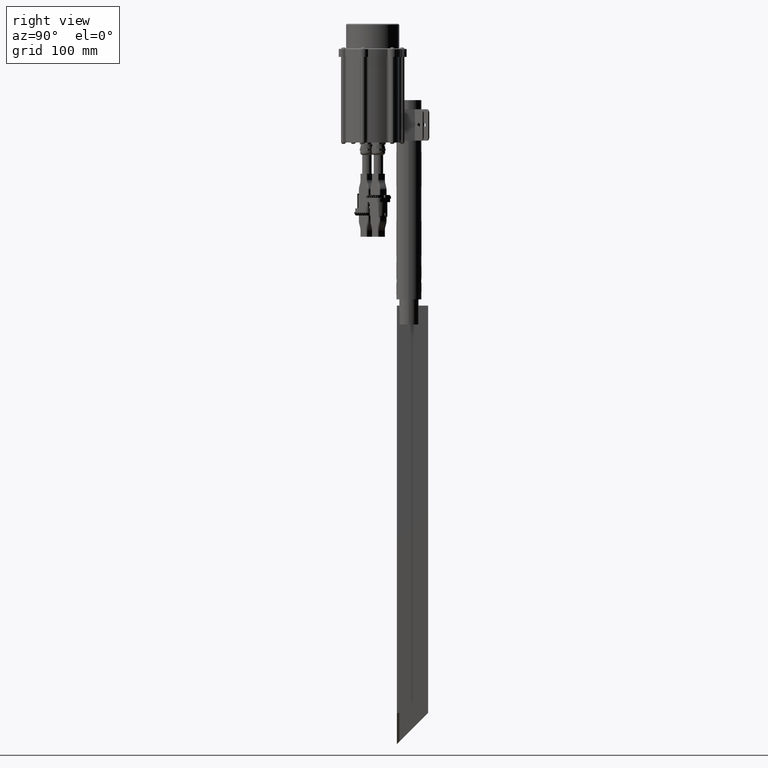
[diagram: clean part render]
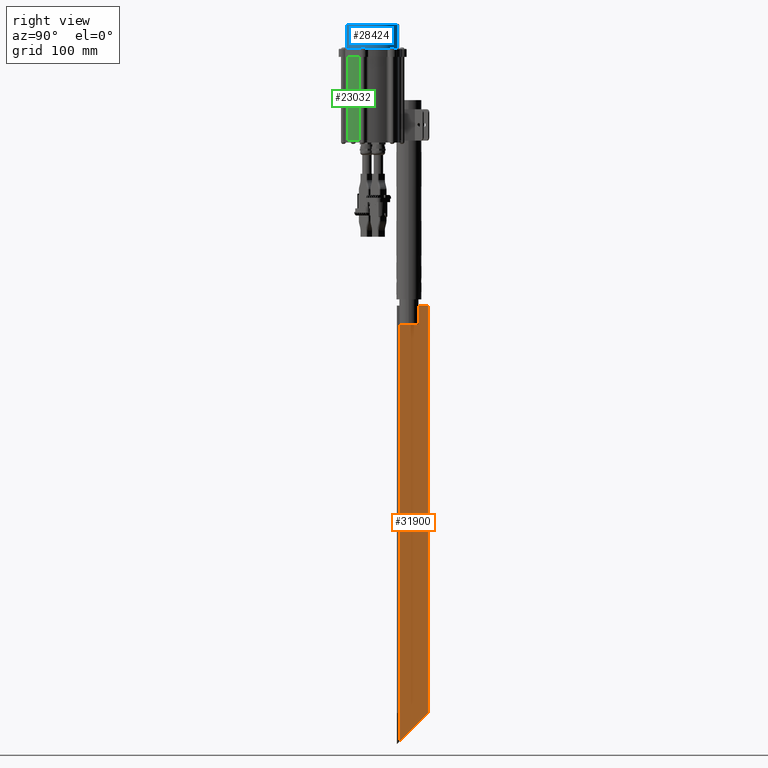
[diagram: same view with three faces highlighted in distinct colors, each labeled with its STEP entity id]
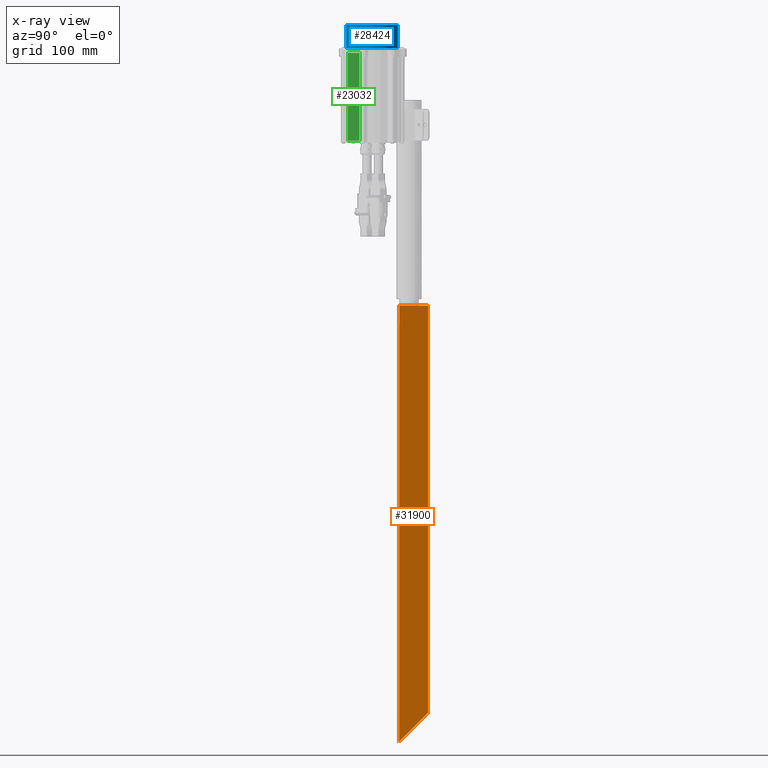
[diagram: x-ray of the same camera — body ghosted, the three highlighted faces saturated]
A machine part, right view with three faces highlighted in distinct colors.
The next image is the same camera in x-ray (body ghosted, the three faces saturated) — at least one of them is partly hidden behind the body in this view.
Their STEP definitions:

[orange] entity #31900 — the highlighted planar face has unit normal (-1, 0, 0).
#1100 = EDGE_CURVE ( 'NONE', #7521, #1239, #22881, .T. ) ;
#1239 = VERTEX_POINT ( 'NONE', #32059 ) ;
#2215 = DIRECTION ( 'NONE',  ( 0.0000000000000000000, 0.0000000000000000000, 1.000000000000000000 ) ) ;
#3328 = CARTESIAN_POINT ( 'NONE',  ( 4.000000000000000000, 50.00000000000000000, 700.0000000000000000 ) ) ;
#5041 = PLANE ( 'NONE',  #12303 ) ;
#6662 = CARTESIAN_POINT ( 'NONE',  ( 4.000000000000000000, 50.00000000000000000, 700.0000000000000000 ) ) ;
#7225 = VECTOR ( 'NONE', #26880, 1000.000000000000000 ) ;
#7521 = VERTEX_POINT ( 'NONE', #6662 ) ;
#9012 = VERTEX_POINT ( 'NONE', #34431 ) ;
#10399 = VECTOR ( 'NONE', #28114, 1000.000000000000100 ) ;
#10732 = ORIENTED_EDGE ( 'NONE', *, *, #1100, .F. ) ;
#12303 = AXIS2_PLACEMENT_3D ( 'NONE', #31522, #19815, #2215 ) ;
#14150 = LINE ( 'NONE', #30742, #28882 ) ;
#17011 = EDGE_CURVE ( 'NONE', #9012, #1239, #26048, .T. ) ;
#18106 = VECTOR ( 'NONE', #27276, 1000.000000000000000 ) ;
#19815 = DIRECTION ( 'NONE',  ( -1.000000000000000000, 0.0000000000000000000, 0.0000000000000000000 ) ) ;
#20351 = ORIENTED_EDGE ( 'NONE', *, *, #17011, .T. ) ;
#22705 = ORIENTED_EDGE ( 'NONE', *, *, #24435, .F. ) ;
#22881 = LINE ( 'NONE', #3328, #7225 ) ;
#24285 = CARTESIAN_POINT ( 'NONE',  ( 4.000000000000000000, 4.000000000000000000, 700.0000000000000000 ) ) ;
#24435 = EDGE_CURVE ( 'NONE', #27118, #7521, #25947, .T. ) ;
#24955 = DIRECTION ( 'NONE',  ( -0.0000000000000000000, -0.0000000000000000000, -1.000000000000000000 ) ) ;
#25161 = CARTESIAN_POINT ( 'NONE',  ( 4.000000000000000000, 351.9999999999999400, 352.0000000000000600 ) ) ;
#25947 = LINE ( 'NONE', #24285, #18106 ) ;
#26048 = LINE ( 'NONE', #25161, #10399 ) ;
#26880 = DIRECTION ( 'NONE',  ( -0.0000000000000000000, -0.0000000000000000000, -1.000000000000000000 ) ) ;
#27118 = VERTEX_POINT ( 'NONE', #31141 ) ;
#27276 = DIRECTION ( 'NONE',  ( 0.0000000000000000000, 1.000000000000000000, 0.0000000000000000000 ) ) ;
#27921 = EDGE_LOOP ( 'NONE', ( #36223, #20351, #10732, #22705 ) ) ;
#28114 = DIRECTION ( 'NONE',  ( 0.0000000000000000000, 0.7071067811865474600, 0.7071067811865474600 ) ) ;
#28882 = VECTOR ( 'NONE', #24955, 1000.000000000000000 ) ;
#30742 = CARTESIAN_POINT ( 'NONE',  ( 4.000000000000000000, 4.000000000000000000, 700.0000000000000000 ) ) ;
#31141 = CARTESIAN_POINT ( 'NONE',  ( 4.000000000000000000, 4.000000000000000000, 700.0000000000000000 ) ) ;
#31522 = CARTESIAN_POINT ( 'NONE',  ( 4.000000000000000000, 4.000000000000000000, 700.0000000000000000 ) ) ;
#31669 = FACE_OUTER_BOUND ( 'NONE', #27921, .T. ) ;
#31751 = EDGE_CURVE ( 'NONE', #27118, #9012, #14150, .T. ) ;
#31900 = ADVANCED_FACE ( 'NONE', ( #31669 ), #5041, .F. ) ;
#32059 = CARTESIAN_POINT ( 'NONE',  ( 4.000000000000000000, 50.00000000000000700, 50.00000000000000000 ) ) ;
#34431 = CARTESIAN_POINT ( 'NONE',  ( 4.000000000000000000, 4.000000000000000000, 4.000000000000003600 ) ) ;
#36223 = ORIENTED_EDGE ( 'NONE', *, *, #31751, .T. ) ;

[blue] entity #28424 — the highlighted cylindrical surface (edge-blend (fillet) strip) has radius 42.5 mm, axis along (0, 0, -1).
#207 = EDGE_CURVE ( 'NONE', #21850, #8427, #26632, .T. ) ;
#587 = ORIENTED_EDGE ( 'NONE', *, *, #207, .F. ) ;
#600 = EDGE_CURVE ( 'NONE', #20757, #3865, #3131, .T. ) ;
#1237 = DIRECTION ( 'NONE',  ( 1.000000000000000000, 0.0000000000000000000, 0.0000000000000000000 ) ) ;
#1732 = FACE_OUTER_BOUND ( 'NONE', #33263, .T. ) ;
#2268 = DIRECTION ( 'NONE',  ( -0.0000000000000000000, -0.0000000000000000000, 1.000000000000000000 ) ) ;
#3131 = LINE ( 'NONE', #24571, #10011 ) ;
#3865 = VERTEX_POINT ( 'NONE', #4695 ) ;
#4041 = DIRECTION ( 'NONE',  ( -0.0000000000000000000, -0.0000000000000000000, 1.000000000000000000 ) ) ;
#4695 = CARTESIAN_POINT ( 'NONE',  ( 42.49999999999970200, -1.210511725580065700E-012, -3.999999999999996400 ) ) ;
#8427 = VERTEX_POINT ( 'NONE', #34201 ) ;
#8702 = ORIENTED_EDGE ( 'NONE', *, *, #20119, .T. ) ;
#9468 = CIRCLE ( 'NONE', #13517, 42.50000000000000700 ) ;
#10011 = VECTOR ( 'NONE', #4041, 1000.000000000000000 ) ;
#11811 = CARTESIAN_POINT ( 'NONE',  ( -3.046066003598024700E-013, -1.210511725580065700E-012, -41.00000000000000000 ) ) ;
#12919 = CARTESIAN_POINT ( 'NONE',  ( 42.49999999999970200, -1.210511725580065700E-012, -41.00000000000000000 ) ) ;
#13344 = ORIENTED_EDGE ( 'NONE', *, *, #29762, .T. ) ;
#13517 = AXIS2_PLACEMENT_3D ( 'NONE', #36491, #18869, #1237 ) ;
#14748 = DIRECTION ( 'NONE',  ( -1.000000000000000000, 0.0000000000000000000, 0.0000000000000000000 ) ) ;
#15203 = AXIS2_PLACEMENT_3D ( 'NONE', #34535, #2268, #37487 ) ;
#16858 = CARTESIAN_POINT ( 'NONE',  ( -42.50000000000031300, -1.205306976683689500E-012, -40.00000000000000000 ) ) ;
#18624 = CARTESIAN_POINT ( 'NONE',  ( -42.50000000000031300, -1.205306976683689500E-012, -41.00000000000000000 ) ) ;
#18802 = VECTOR ( 'NONE', #19805, 1000.000000000000000 ) ;
#18869 = DIRECTION ( 'NONE',  ( -0.0000000000000000000, -0.0000000000000000000, -1.000000000000000000 ) ) ;
#19805 = DIRECTION ( 'NONE',  ( -0.0000000000000000000, -0.0000000000000000000, 1.000000000000000000 ) ) ;
#20119 = EDGE_CURVE ( 'NONE', #21850, #20757, #28246, .T. ) ;
#20757 = VERTEX_POINT ( 'NONE', #12919 ) ;
#21305 = ORIENTED_EDGE ( 'NONE', *, *, #600, .T. ) ;
#21850 = VERTEX_POINT ( 'NONE', #18624 ) ;
#24571 = CARTESIAN_POINT ( 'NONE',  ( 42.49999999999970200, -1.210511725580065700E-012, -40.00000000000000000 ) ) ;
#26632 = LINE ( 'NONE', #16858, #18802 ) ;
#28246 = CIRCLE ( 'NONE', #32627, 42.50000000000000700 ) ;
#28424 = ADVANCED_FACE ( 'NONE', ( #1732 ), #30259, .T. ) ;
#29762 = EDGE_CURVE ( 'NONE', #3865, #8427, #9468, .T. ) ;
#30259 = CYLINDRICAL_SURFACE ( 'NONE', #15203, 42.50000000000000700 ) ;
#32344 = DIRECTION ( 'NONE',  ( -0.0000000000000000000, -0.0000000000000000000, 1.000000000000000000 ) ) ;
#32627 = AXIS2_PLACEMENT_3D ( 'NONE', #11811, #32344, #14748 ) ;
#33263 = EDGE_LOOP ( 'NONE', ( #587, #8702, #21305, #13344 ) ) ;
#34201 = CARTESIAN_POINT ( 'NONE',  ( -42.50000000000031300, -1.205306976683689500E-012, -3.999999999999996400 ) ) ;
#34535 = CARTESIAN_POINT ( 'NONE',  ( -3.046066003598024700E-013, -1.210511725580065700E-012, -40.00000000000000000 ) ) ;
#36491 = CARTESIAN_POINT ( 'NONE',  ( -3.046066003598024700E-013, -1.210511725580065700E-012, -3.999999999999996400 ) ) ;
#37487 = DIRECTION ( 'NONE',  ( 1.000000000000000000, 0.0000000000000000000, 0.0000000000000000000 ) ) ;

[green] entity #23032 — the highlighted cylindrical surface (edge-blend (fillet) strip) has radius 42.5 mm, axis along (-0, -0, 1).
#369 = CIRCLE ( 'NONE', #14239, 42.49999999999327800 ) ;
#564 = VERTEX_POINT ( 'NONE', #36181 ) ;
#2321 = CARTESIAN_POINT ( 'NONE',  ( 0.0000000000000000000, 0.0000000000000000000, 0.0000000000000000000 ) ) ;
#3532 = EDGE_CURVE ( 'NONE', #35502, #564, #13023, .T. ) ;
#5301 = DIRECTION ( 'NONE',  ( 1.000000000000000000, 0.0000000000000000000, 0.0000000000000000000 ) ) ;
#5444 = CYLINDRICAL_SURFACE ( 'NONE', #14524, 42.49999999999327800 ) ;
#5503 = EDGE_LOOP ( 'NONE', ( #7488, #8493, #11463, #34478 ) ) ;
#5521 = VERTEX_POINT ( 'NONE', #18669 ) ;
#6341 = CARTESIAN_POINT ( 'NONE',  ( 8.016413668201869000, -41.73711911356239300, 140.0000000000000000 ) ) ;
#7100 = LINE ( 'NONE', #36679, #21828 ) ;
#7289 = FACE_OUTER_BOUND ( 'NONE', #5503, .T. ) ;
#7488 = ORIENTED_EDGE ( 'NONE', *, *, #31923, .T. ) ;
#8493 = ORIENTED_EDGE ( 'NONE', *, *, #19233, .F. ) ;
#9108 = DIRECTION ( 'NONE',  ( -0.0000000000000000000, 0.0000000000000000000, 1.000000000000000000 ) ) ;
#10019 = DIRECTION ( 'NONE',  ( -1.000000000000000000, 0.0000000000000000000, 0.0000000000000000000 ) ) ;
#11173 = CARTESIAN_POINT ( 'NONE',  ( 32.13719859901570400, -27.81097744069511900, 0.0000000000000000000 ) ) ;
#11463 = ORIENTED_EDGE ( 'NONE', *, *, #3532, .F. ) ;
#13023 = CIRCLE ( 'NONE', #28232, 42.49999999999327800 ) ;
#13166 = DIRECTION ( 'NONE',  ( -0.0000000000000000000, -0.0000000000000000000, -1.000000000000000000 ) ) ;
#14239 = AXIS2_PLACEMENT_3D ( 'NONE', #2321, #22918, #5301 ) ;
#14524 = AXIS2_PLACEMENT_3D ( 'NONE', #30440, #27546, #10019 ) ;
#17217 = LINE ( 'NONE', #25805, #30993 ) ;
#18201 = VERTEX_POINT ( 'NONE', #11173 ) ;
#18669 = CARTESIAN_POINT ( 'NONE',  ( 8.016413668201869000, -41.73711911356239300, 0.0000000000000000000 ) ) ;
#19233 = EDGE_CURVE ( 'NONE', #564, #18201, #7100, .T. ) ;
#21828 = VECTOR ( 'NONE', #13166, 1000.000000000000000 ) ;
#22918 = DIRECTION ( 'NONE',  ( -0.0000000000000000000, 0.0000000000000000000, 1.000000000000000000 ) ) ;
#23032 = ADVANCED_FACE ( 'NONE', ( #7289 ), #5444, .T. ) ;
#25805 = CARTESIAN_POINT ( 'NONE',  ( 8.016413668201869000, -41.73711911356239300, 140.0000000000000000 ) ) ;
#26712 = CARTESIAN_POINT ( 'NONE',  ( 0.0000000000000000000, 0.0000000000000000000, 140.0000000000000000 ) ) ;
#27546 = DIRECTION ( 'NONE',  ( -0.0000000000000000000, -0.0000000000000000000, -1.000000000000000000 ) ) ;
#28232 = AXIS2_PLACEMENT_3D ( 'NONE', #26712, #9108, #29666 ) ;
#28775 = DIRECTION ( 'NONE',  ( -0.0000000000000000000, -0.0000000000000000000, -1.000000000000000000 ) ) ;
#29666 = DIRECTION ( 'NONE',  ( 1.000000000000000000, 0.0000000000000000000, 0.0000000000000000000 ) ) ;
#30440 = CARTESIAN_POINT ( 'NONE',  ( 0.0000000000000000000, 0.0000000000000000000, 140.0000000000000000 ) ) ;
#30993 = VECTOR ( 'NONE', #28775, 1000.000000000000000 ) ;
#31923 = EDGE_CURVE ( 'NONE', #5521, #18201, #369, .T. ) ;
#34478 = ORIENTED_EDGE ( 'NONE', *, *, #36356, .T. ) ;
#35502 = VERTEX_POINT ( 'NONE', #6341 ) ;
#36181 = CARTESIAN_POINT ( 'NONE',  ( 32.13719859901570400, -27.81097744069511900, 140.0000000000000000 ) ) ;
#36356 = EDGE_CURVE ( 'NONE', #35502, #5521, #17217, .T. ) ;
#36679 = CARTESIAN_POINT ( 'NONE',  ( 32.13719859901570400, -27.81097744069511900, 140.0000000000000000 ) ) ;